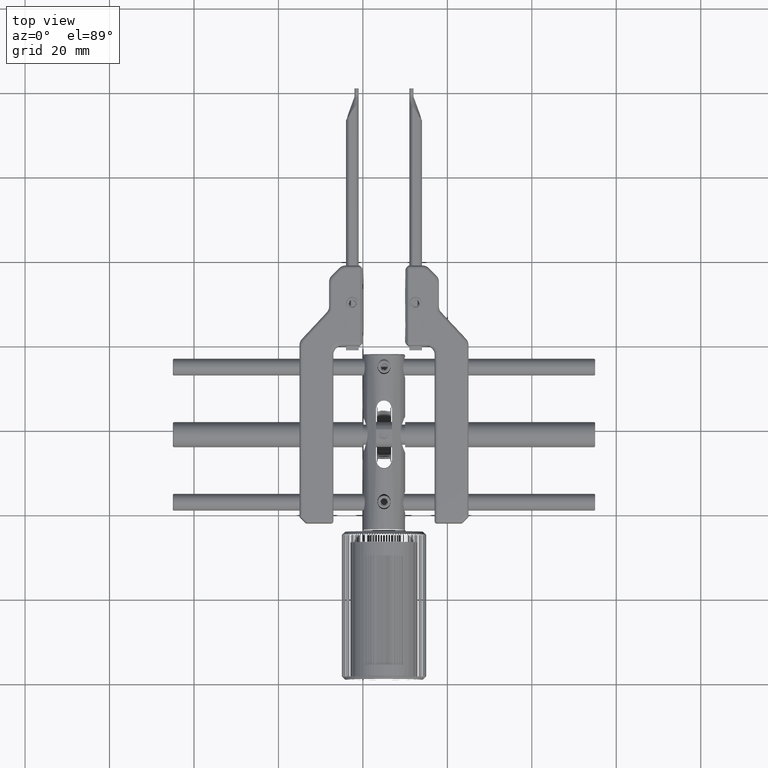
[diagram: clean part render]
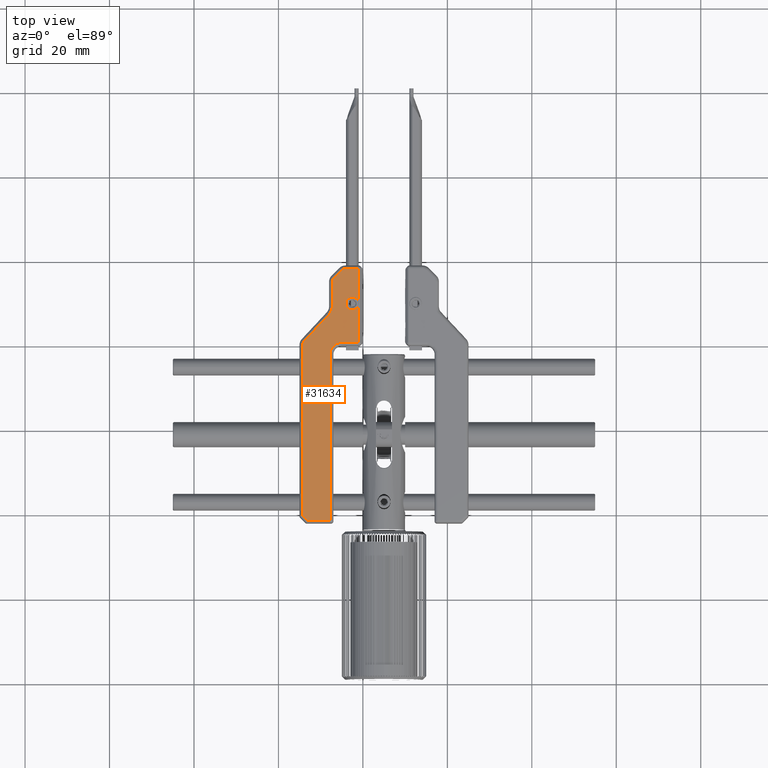
[diagram: same view with one face highlighted and labeled with its STEP entity id]
A machine part, top view. The second image highlights one B-rep face of the part: STEP entity #31634.
In plain terms, the highlighted planar face has unit normal (0, 0, -1).
Its self-contained STEP definition (entity closure, byte-faithful):
#21 = DIRECTION ( 'NONE',  ( -1.000000000000000000, 0.000000000000000000, -0.000000000000000000 ) ) ;
#111 = CARTESIAN_POINT ( 'NONE',  ( 15.82842712474619873, 18.25000000000000000, 4.000000000000000000 ) ) ;
#453 = CARTESIAN_POINT ( 'NONE',  ( 18.74999999999998579, 10.07938721587746222, 4.000000000000000888 ) ) ;
#898 = CARTESIAN_POINT ( 'NONE',  ( 18.00000645838711932, 11.14585006917659271, 4.000000000000000000 ) ) ;
#1117 = CARTESIAN_POINT ( 'NONE',  ( 18.70703190299392560, 10.32946201445125212, 3.999999999999999112 ) ) ;
#1262 = CARTESIAN_POINT ( 'NONE',  ( 18.74999999999998224, 10.00000000000000000, 3.999999999999999112 ) ) ;
#1343 = CARTESIAN_POINT ( 'NONE',  ( 16.35414993082303425, 10.50000645838649760, 4.000000000000000888 ) ) ;
#1469 = CARTESIAN_POINT ( 'NONE',  ( 16.49437856662600055, 9.237959410675410155, 3.999999999999999112 ) ) ;
#2093 = ORIENTED_EDGE ( 'NONE', *, *, #34630, .F. ) ;
#2126 = CARTESIAN_POINT ( 'NONE',  ( 16.99999354161343490, 8.854149930823293602, 3.999999999999999112 ) ) ;
#2713 = ORIENTED_EDGE ( 'NONE', *, *, #41705, .F. ) ;
#2907 = B_SPLINE_CURVE_WITH_KNOTS ( 'NONE', 3,
 ( #15134, #22293, #11580, #22514, #36137, #8867, #32121, #28993, #1469, #35919, #8428, #5509, #19165, #2126, #12226, #14910, #21846, #38831, #42435, #11797, #32776, #25407, #18721, #39050, #28771, #15791, #22071, #5056, #35689, #42653, #25194, #32343, #4839, #28543 ),
 .UNSPECIFIED., .F., .F.,
 ( 4, 1, 1, 2, 2, 2, 1, 1, 2, 2, 2, 1, 1, 2, 2, 2, 1, 1, 2, 2, 4 ),
 ( 0.000000000000000000, 0.06250000000000582867, 0.09375000000000943690, 0.1093750000000101863, 0.1250000000000109357, 0.2500000000000201505, 0.3125000000000247580, 0.3437500000000284772, 0.3593750000000292544, 0.3750000000000299760, 0.5000000000000236478, 0.5625000000000190958, 0.5937500000000168754, 0.6093750000000157652, 0.6250000000000146549, 0.7500000000000106581, 0.8125000000000077716, 0.8437500000000057732, 0.8593750000000052180, 0.8750000000000046629, 1.000000000000000000 ),
 .UNSPECIFIED. ) ;
#3220 = CARTESIAN_POINT ( 'NONE',  ( 5.749999999999987566, 0.5321441317675152938, 3.999999999999999112 ) ) ;
#3282 = CARTESIAN_POINT ( 'NONE',  ( 12.24999999999999467, -41.25000000000000000, 3.999999999999999112 ) ) ;
#3350 = ORIENTED_EDGE ( 'NONE', *, *, #16037, .F. ) ;
#3479 = LINE ( 'NONE', #21378, #19371 ) ;
#4036 = LINE ( 'NONE', #38686, #7185 ) ;
#4044 = CARTESIAN_POINT ( 'NONE',  ( 18.50562143337153387, 10.76204058932510499, 4.000000000000000000 ) ) ;
#4257 = CARTESIAN_POINT ( 'NONE',  ( 17.81267451478433728, 11.22067752756784742, 3.999999999999999112 ) ) ;
#4470 = CARTESIAN_POINT ( 'NONE',  ( 12.49146029304654881, 7.927370785656137286, 3.999999999999999112 ) ) ;
#4481 = CARTESIAN_POINT ( 'NONE',  ( 16.73795941067647775, 11.00562143337423038, 3.999999999999998224 ) ) ;
#4688 = ORIENTED_EDGE ( 'NONE', *, *, #9882, .F. ) ;
#4719 = CARTESIAN_POINT ( 'NONE',  ( 6.086180914696400102, 1.064571451709554584, 4.000000000000000000 ) ) ;
#4839 = CARTESIAN_POINT ( 'NONE',  ( 18.74999999999998224, 9.840868823742939142, 4.000000000000000000 ) ) ;
#5056 = CARTESIAN_POINT ( 'NONE',  ( 18.60011932214804276, 9.403475382809837413, 3.999999999999998224 ) ) ;
#5119 =( BOUNDED_CURVE ( )  B_SPLINE_CURVE ( 3, ( #24132, #23908, #21446, #35068 ),
 .UNSPECIFIED., .F., .F. ) 
 B_SPLINE_CURVE_WITH_KNOTS ( ( 4, 4 ),
 ( 0.000000000000000000, 1.000000000000000000 ),
 .UNSPECIFIED. ) 
 CURVE ( )  GEOMETRIC_REPRESENTATION_ITEM ( )  RATIONAL_B_SPLINE_CURVE ( ( 1.000000000000000000, 0.8047378541243649375, 0.8047378541243649375, 1.000000000000000000 ) ) 
 REPRESENTATION_ITEM ( '' )  );
#5189 = LINE ( 'NONE', #25756, #8570 ) ;
#5333 = CARTESIAN_POINT ( 'NONE',  ( 5.749999999999995559, -40.18933982822017725, 4.000000000000000000 ) ) ;
#5509 = CARTESIAN_POINT ( 'NONE',  ( 16.90347538280921214, 8.899880677853285960, 3.999999999999998224 ) ) ;
#5686 = LINE ( 'NONE', #32740, #39974 ) ;
#5730 = CARTESIAN_POINT ( 'NONE',  ( 12.74999999999999467, 9.288326361240454077, 3.999999999999999112 ) ) ;
#6816 = VECTOR ( 'NONE', #43026, 1000.000000000000000 ) ;
#7026 = LINE ( 'NONE', #30956, #40714 ) ;
#7185 = VECTOR ( 'NONE', #17687, 1000.000000000000000 ) ;
#7349 = ORIENTED_EDGE ( 'NONE', *, *, #13782, .F. ) ;
#7413 = ORIENTED_EDGE ( 'NONE', *, *, #38600, .F. ) ;
#7628 = CARTESIAN_POINT ( 'NONE',  ( 18.68920471381055393, 10.38571080435838212, 3.999999999999999112 ) ) ;
#7845 = CARTESIAN_POINT ( 'NONE',  ( 16.87971144801663925, 11.09890197946623580, 3.999999999999998224 ) ) ;
#7945 = VECTOR ( 'NONE', #10631, 999.9999999999998863 ) ;
#8142 = CARTESIAN_POINT ( 'NONE',  ( 5.749999999999987566, 0.2116736387595408997, 3.999999999999999112 ) ) ;
#8170 = EDGE_CURVE ( 'NONE', #12829, #16534, #40781, .T. ) ;
#8322 = ORIENTED_EDGE ( 'NONE', *, *, #39718, .F. ) ;
#8325 = EDGE_CURVE ( 'NONE', #22988, #11175, #5686, .T. ) ;
#8428 = CARTESIAN_POINT ( 'NONE',  ( 16.77560787198763492, 8.974710009772451258, 3.999999999999999112 ) ) ;
#8570 = VECTOR ( 'NONE', #22648, 1000.000000000000000 ) ;
#8782 = EDGE_CURVE ( 'NONE', #43527, #12562, #5189, .T. ) ;
#8867 = CARTESIAN_POINT ( 'NONE',  ( 16.32359429380825944, 9.576958803498195394, 3.999999999999998224 ) ) ;
#9014 = CARTESIAN_POINT ( 'NONE',  ( 12.74999999999999645, 15.50752425283466707, 3.999999999999999112 ) ) ;
#9119 = VERTEX_POINT ( 'NONE', #22591 ) ;
#9882 = EDGE_CURVE ( 'NONE', #12562, #41569, #3479, .T. ) ;
#9902 = CARTESIAN_POINT ( 'NONE',  ( 19.04289321881344321, 18.25000000000000355, 4.000000000000000000 ) ) ;
#9959 =( BOUNDED_CURVE ( )  B_SPLINE_CURVE ( 3, ( #39637, #9014, #42358, #43237 ),
 .UNSPECIFIED., .F., .F. ) 
 B_SPLINE_CURVE_WITH_KNOTS ( ( 4, 4 ),
 ( 0.000000000000000000, 1.000000000000000000 ),
 .UNSPECIFIED. ) 
 CURVE ( )  GEOMETRIC_REPRESENTATION_ITEM ( )  RATIONAL_B_SPLINE_CURVE ( ( 1.000000000000000000, 0.9492530216741911220, 0.9492530216741911220, 1.000000000000000000 ) ) 
 REPRESENTATION_ITEM ( '' )  );
#10055 = VECTOR ( 'NONE', #17032, 1000.000000000000000 ) ;
#10235 =( BOUNDED_CURVE ( )  B_SPLINE_CURVE ( 3, ( #23947, #4470, #35110, #41624 ),
 .UNSPECIFIED., .F., .F. ) 
 B_SPLINE_CURVE_WITH_KNOTS ( ( 4, 4 ),
 ( 0.000000000000000000, 1.000000000000000000 ),
 .UNSPECIFIED. ) 
 CURVE ( )  GEOMETRIC_REPRESENTATION_ITEM ( )  RATIONAL_B_SPLINE_CURVE ( ( 1.000000000000000000, 0.9535582510030568004, 0.9535582510030568004, 1.000000000000000000 ) ) 
 REPRESENTATION_ITEM ( '' )  );
#10241 = EDGE_CURVE ( 'NONE', #16534, #43527, #4036, .T. ) ;
#10631 = DIRECTION ( 'NONE',  ( -0.7071067811865463515, 0.7071067811865487940, 0.000000000000000000 ) ) ;
#10993 = ORIENTED_EDGE ( 'NONE', *, *, #8782, .F. ) ;
#11175 = VERTEX_POINT ( 'NONE', #40653 ) ;
#11448 = CARTESIAN_POINT ( 'NONE',  ( 16.55519507993698625, 10.82301449803765436, 4.000000000000000000 ) ) ;
#11580 = CARTESIAN_POINT ( 'NONE',  ( 16.26097057795899659, 9.803557573844457806, 3.999999999999999112 ) ) ;
#11797 = CARTESIAN_POINT ( 'NONE',  ( 17.82935031642878698, 8.792923930133392574, 4.000000000000000000 ) ) ;
#12226 = CARTESIAN_POINT ( 'NONE',  ( 17.02145112902678292, 8.845069892576944426, 3.999999999999998224 ) ) ;
#12562 = VERTEX_POINT ( 'NONE', #42068 ) ;
#12829 = VERTEX_POINT ( 'NONE', #25992 ) ;
#12904 = EDGE_CURVE ( 'NONE', #11175, #42726, #9959, .T. ) ;
#12927 = CARTESIAN_POINT ( 'NONE',  ( 13.11611652351681023, 16.05545635173698926, 4.000000000000000000 ) ) ;
#13782 = EDGE_CURVE ( 'NONE', #43770, #15857, #7026, .T. ) ;
#14120 = CARTESIAN_POINT ( 'NONE',  ( 18.67640570619172635, 10.42304119650155236, 4.000000000000000888 ) ) ;
#14133 = PLANE ( 'NONE',  #25804 ) ;
#14785 = CARTESIAN_POINT ( 'NONE',  ( 18.09652461719238303, 11.10011932214636943, 3.999999999999998224 ) ) ;
#14910 = CARTESIAN_POINT ( 'NONE',  ( 17.18732548521458270, 8.779322472432157909, 3.999999999999999112 ) ) ;
#15057 = ORIENTED_EDGE ( 'NONE', *, *, #27066, .F. ) ;
#15134 = CARTESIAN_POINT ( 'NONE',  ( 16.25000000000000000, 10.00000000000000000, 3.999999999999999112 ) ) ;
#15656 = CARTESIAN_POINT ( 'NONE',  ( 16.34507834231129664, 10.47857018883269475, 3.999999999999999112 ) ) ;
#15791 = CARTESIAN_POINT ( 'NONE',  ( 18.44480492006348982, 9.176985501962695579, 3.999999999999999112 ) ) ;
#15857 = VERTEX_POINT ( 'NONE', #3282 ) ;
#15875 = CARTESIAN_POINT ( 'NONE',  ( 16.39988067785258252, 10.59652461719061556, 3.999999999999999112 ) ) ;
#15973 = DIRECTION ( 'NONE',  ( -1.652117596168388249E-16, 1.000000000000000000, -0.000000000000000000 ) ) ;
#16037 = EDGE_CURVE ( 'NONE', #9119, #23993, #2907, .T. ) ;
#16534 = VERTEX_POINT ( 'NONE', #111 ) ;
#17032 = DIRECTION ( 'NONE',  ( 0.7071067811865492381, 0.7071067811865457964, -0.000000000000000000 ) ) ;
#17544 = LINE ( 'NONE', #25563, #36777 ) ;
#17687 = DIRECTION ( 'NONE',  ( 1.000000000000000000, 4.336808689942017736E-16, -0.000000000000000000 ) ) ;
#17793 = VERTEX_POINT ( 'NONE', #32927 ) ;
#17921 = CARTESIAN_POINT ( 'NONE',  ( 17.65860422524290385, 11.24993269809876928, 3.999999999999998224 ) ) ;
#18600 = CARTESIAN_POINT ( 'NONE',  ( 16.25000000000000355, 10.15913117625869333, 4.000000000000000000 ) ) ;
#18721 = CARTESIAN_POINT ( 'NONE',  ( 17.94009711632336490, 8.829847949064125956, 3.999999999999998224 ) ) ;
#18816 = CARTESIAN_POINT ( 'NONE',  ( 16.25000000000000000, 10.00000000000000000, 3.999999999999999112 ) ) ;
#19165 = CARTESIAN_POINT ( 'NONE',  ( 16.96102033297388445, 8.871897374875100439, 4.000000000000000000 ) ) ;
#19371 = VECTOR ( 'NONE', #27405, 1000.000000000000000 ) ;
#20514 = DIRECTION ( 'NONE',  ( 0.6823182503600114801, 0.7310552682428687055, -0.000000000000000000 ) ) ;
#21277 = CARTESIAN_POINT ( 'NONE',  ( 18.03897966702713518, 11.12810262512468640, 3.999999999999999112 ) ) ;
#21378 = CARTESIAN_POINT ( 'NONE',  ( 14.99999999999999289, 0.7499999999999998890, 3.999999999999999112 ) ) ;
#21446 = CARTESIAN_POINT ( 'NONE',  ( 12.24999999999999112, -0.3890872965260126493, 3.999999999999999112 ) ) ;
#21499 = CARTESIAN_POINT ( 'NONE',  ( 17.30370650454341330, 11.23908831120456497, 4.000000000000000000 ) ) ;
#21513 = DIRECTION ( 'NONE',  ( 0.000000000000000000, 0.000000000000000000, -1.000000000000000000 ) ) ;
#21589 = CARTESIAN_POINT ( 'NONE',  ( 15.18209714549941225, 18.12143697371957529, 3.999999999999998224 ) ) ;
#21809 = B_SPLINE_CURVE_WITH_KNOTS ( 'NONE', 3,
 ( #28414, #453, #38254, #1117, #7628, #14120, #27737, #41412, #4044, #27962, #24618, #14785, #21277, #898, #34893, #4257, #17921, #31547, #21499, #28183, #42078, #24844, #38473, #7845, #4481, #11448, #25503, #15875, #35792, #1343, #15656, #25944, #18600, #18816 ),
 .UNSPECIFIED., .F., .F.,
 ( 4, 1, 1, 2, 2, 2, 1, 1, 2, 2, 2, 1, 1, 2, 2, 2, 1, 1, 2, 2, 4 ),
 ( 0.000000000000000000, 0.06249999999999819589, 0.09374999999999729383, 0.1093749999999978906, 0.1249999999999985012, 0.2500000000000021094, 0.3125000000000043299, 0.3437500000000047184, 0.3593750000000052180, 0.3750000000000057176, 0.5000000000000055511, 0.5625000000000055511, 0.5937500000000056621, 0.6093750000000057732, 0.6250000000000056621, 0.7500000000000027756, 0.8125000000000017764, 0.8437500000000013323, 0.8593750000000011102, 0.8750000000000007772, 1.000000000000000000 ),
 .UNSPECIFIED. ) ;
#21846 = CARTESIAN_POINT ( 'NONE',  ( 17.34139577475548322, 8.750067301901232497, 3.999999999999999112 ) ) ;
#21871 = VERTEX_POINT ( 'NONE', #31128 ) ;
#22071 = CARTESIAN_POINT ( 'NONE',  ( 18.52528999022932865, 9.275607871988453823, 3.999999999999999112 ) ) ;
#22249 =( BOUNDED_CURVE ( )  B_SPLINE_CURVE ( 3, ( #44180, #3220, #41031, #33637 ),
 .UNSPECIFIED., .F., .F. ) 
 B_SPLINE_CURVE_WITH_KNOTS ( ( 4, 4 ),
 ( 0.000000000000000000, 1.000000000000000000 ),
 .UNSPECIFIED. ) 
 CURVE ( )  GEOMETRIC_REPRESENTATION_ITEM ( )  RATIONAL_B_SPLINE_CURVE ( ( 1.000000000000000000, 0.9535582510030569114, 0.9535582510030569114, 1.000000000000000000 ) ) 
 REPRESENTATION_ITEM ( '' )  );
#22293 = CARTESIAN_POINT ( 'NONE',  ( 16.25000000000000000, 9.920612784121997763, 3.999999999999999112 ) ) ;
#22514 = CARTESIAN_POINT ( 'NONE',  ( 16.29296809700606374, 9.670537985548042670, 4.000000000000000000 ) ) ;
#22591 = CARTESIAN_POINT ( 'NONE',  ( 16.25000000000000000, 10.00000000000000000, 3.999999999999999112 ) ) ;
#22648 = DIRECTION ( 'NONE',  ( -0.000000000000000000, -1.000000000000000000, -0.000000000000000000 ) ) ;
#22988 = VERTEX_POINT ( 'NONE', #5730 ) ;
#23908 = CARTESIAN_POINT ( 'NONE',  ( 13.38908729652600371, 0.7499999999999985567, 3.999999999999999112 ) ) ;
#23947 = CARTESIAN_POINT ( 'NONE',  ( 12.01040198766788158, 7.411951172750423922, 3.999999999999999112 ) ) ;
#23993 = VERTEX_POINT ( 'NONE', #1262 ) ;
#24132 = CARTESIAN_POINT ( 'NONE',  ( 14.99999999999999289, 0.7499999999999991118, 3.999999999999999112 ) ) ;
#24186 = VECTOR ( 'NONE', #20514, 1000.000000000000000 ) ;
#24410 = CARTESIAN_POINT ( 'NONE',  ( 14.99999999999999289, -2.000000000000001776, 3.999999999999999112 ) ) ;
#24618 = CARTESIAN_POINT ( 'NONE',  ( 18.22439212801451092, 11.02528999022710465, 3.999999999999999112 ) ) ;
#24844 = CARTESIAN_POINT ( 'NONE',  ( 17.07699869564969575, 11.17642148007483271, 4.000000000000000000 ) ) ;
#24854 = FACE_OUTER_BOUND ( 'NONE', #31915, .T. ) ;
#25194 = CARTESIAN_POINT ( 'NONE',  ( 18.65492165768868205, 9.521429811167102741, 4.000000000000000888 ) ) ;
#25407 = CARTESIAN_POINT ( 'NONE',  ( 17.92300130435067018, 8.823578519925172614, 4.000000000000000888 ) ) ;
#25503 = CARTESIAN_POINT ( 'NONE',  ( 16.47471000977150979, 10.72439212801215014, 3.999999999999999112 ) ) ;
#25563 = CARTESIAN_POINT ( 'NONE',  ( 14.99999999999999289, -41.25000000000000000, 3.999999999999999112 ) ) ;
#25756 = CARTESIAN_POINT ( 'NONE',  ( 19.04289321881344321, -2.000000000000001776, 3.999999999999999112 ) ) ;
#25783 = LINE ( 'NONE', #29368, #6816 ) ;
#25804 = AXIS2_PLACEMENT_3D ( 'NONE', #24410, #21513, #21 ) ;
#25944 = CARTESIAN_POINT ( 'NONE',  ( 16.27925487455732423, 10.31250397190947332, 4.000000000000000888 ) ) ;
#25992 = CARTESIAN_POINT ( 'NONE',  ( 14.94454364826302140, 17.88388347648318799, 4.000000000000000000 ) ) ;
#26898 = ORIENTED_EDGE ( 'NONE', *, *, #27215, .F. ) ;
#27066 = EDGE_CURVE ( 'NONE', #15857, #17793, #17544, .T. ) ;
#27215 = EDGE_CURVE ( 'NONE', #27459, #42327, #25783, .T. ) ;
#27405 = DIRECTION ( 'NONE',  ( -1.000000000000000000, -0.000000000000000000, -0.000000000000000000 ) ) ;
#27459 = VERTEX_POINT ( 'NONE', #5333 ) ;
#27571 = EDGE_LOOP ( 'NONE', ( #3350, #8322 ) ) ;
#27594 = CARTESIAN_POINT ( 'NONE',  ( 6.810660171779815641, -41.25000000000000000, 3.999999999999999112 ) ) ;
#27737 = CARTESIAN_POINT ( 'NONE',  ( 18.67015205093558450, 10.44009711632376280, 4.000000000000000888 ) ) ;
#27962 = CARTESIAN_POINT ( 'NONE',  ( 18.32301449803899374, 10.94480492006221795, 3.999999999999998224 ) ) ;
#28183 = CARTESIAN_POINT ( 'NONE',  ( 17.17064968357225396, 11.20707606986659854, 3.999999999999999112 ) ) ;
#28414 = CARTESIAN_POINT ( 'NONE',  ( 18.74999999999998224, 10.00000000000000000, 3.999999999999999112 ) ) ;
#28504 = CARTESIAN_POINT ( 'NONE',  ( 15.82842712474619873, 18.25000000000000000, 4.000000000000000000 ) ) ;
#28543 = CARTESIAN_POINT ( 'NONE',  ( 18.74999999999998224, 10.00000000000000000, 3.999999999999999112 ) ) ;
#28596 = CARTESIAN_POINT ( 'NONE',  ( 5.030330085889914038, 7.969669914110128595, 4.000000000000000000 ) ) ;
#28771 = CARTESIAN_POINT ( 'NONE',  ( 18.26204058932254881, 8.994378566625080396, 3.999999999999999112 ) ) ;
#28878 = CARTESIAN_POINT ( 'NONE',  ( 12.24999999999999289, -2.000000000000001776, 3.999999999999999112 ) ) ;
#28993 = CARTESIAN_POINT ( 'NONE',  ( 16.40109802053449783, 9.379711448015070729, 4.000000000000000000 ) ) ;
#29368 = CARTESIAN_POINT ( 'NONE',  ( 5.749999999999988454, -2.000000000000003109, 3.999999999999999112 ) ) ;
#30521 = EDGE_CURVE ( 'NONE', #42726, #12829, #41195, .T. ) ;
#30956 = CARTESIAN_POINT ( 'NONE',  ( 12.24999999999999289, -2.000000000000001776, 3.999999999999999112 ) ) ;
#30964 = LINE ( 'NONE', #27594, #7945 ) ;
#31128 = CARTESIAN_POINT ( 'NONE',  ( 12.01040198766788158, 7.411951172750423922, 3.999999999999999112 ) ) ;
#31418 = CARTESIAN_POINT ( 'NONE',  ( 15.49247574716533826, 18.24999999999999289, 3.999999999999998224 ) ) ;
#31547 = CARTESIAN_POINT ( 'NONE',  ( 17.42069788737853742, 11.25003365095060204, 3.999999999999999112 ) ) ;
#31634 = ADVANCED_FACE ( 'NONE', ( #41869, #24854 ), #14133, .F. ) ;
#31915 = EDGE_LOOP ( 'NONE', ( #10993, #40173, #37158, #36927, #32377, #36686, #7413, #2713, #38751, #26898, #2093, #15057, #7349, #37998, #4688 ) ) ;
#32121 = CARTESIAN_POINT ( 'NONE',  ( 16.32984794906414550, 9.559902883676736352, 4.000000000000000000 ) ) ;
#32343 = CARTESIAN_POINT ( 'NONE',  ( 18.72074512544265801, 9.687496028092160927, 3.999999999999999112 ) ) ;
#32377 = ORIENTED_EDGE ( 'NONE', *, *, #12904, .F. ) ;
#32740 = CARTESIAN_POINT ( 'NONE',  ( 12.74999999999999822, -2.000000000000002220, 4.000000000000000000 ) ) ;
#32776 = CARTESIAN_POINT ( 'NONE',  ( 17.88563899848680094, 8.810766893199865279, 3.999999999999999112 ) ) ;
#32927 = CARTESIAN_POINT ( 'NONE',  ( 6.810660171779816530, -41.25000000000000000, 4.000000000000000000 ) ) ;
#33637 = CARTESIAN_POINT ( 'NONE',  ( 6.086180914696400102, 1.064571451709554584, 4.000000000000000000 ) ) ;
#34578 = EDGE_CURVE ( 'NONE', #42327, #43719, #22249, .T. ) ;
#34630 = EDGE_CURVE ( 'NONE', #17793, #27459, #30964, .T. ) ;
#34893 = CARTESIAN_POINT ( 'NONE',  ( 17.97854887097333076, 11.15493010742305380, 3.999999999999999112 ) ) ;
#35068 = CARTESIAN_POINT ( 'NONE',  ( 12.24999999999999289, -2.000000000000001776, 3.999999999999999112 ) ) ;
#35110 = CARTESIAN_POINT ( 'NONE',  ( 12.74999999999999467, 8.583291276622910360, 3.999999999999999112 ) ) ;
#35689 = CARTESIAN_POINT ( 'NONE',  ( 18.62810262512574866, 9.461020332974285907, 4.000000000000000888 ) ) ;
#35792 = CARTESIAN_POINT ( 'NONE',  ( 16.37189737487463859, 10.53897966702600542, 3.999999999999999112 ) ) ;
#35919 = CARTESIAN_POINT ( 'NONE',  ( 16.67698550196222484, 9.055195079937528035, 3.999999999999998224 ) ) ;
#36137 = CARTESIAN_POINT ( 'NONE',  ( 16.31079528618943542, 9.614289195641164909, 4.000000000000000888 ) ) ;
#36686 = ORIENTED_EDGE ( 'NONE', *, *, #8325, .F. ) ;
#36777 = VECTOR ( 'NONE', #42586, 1000.000000000000000 ) ;
#36827 = CARTESIAN_POINT ( 'NONE',  ( 8.707436344293787656, 3.873059411992465506, 4.000000000000000000 ) ) ;
#36927 = ORIENTED_EDGE ( 'NONE', *, *, #30521, .F. ) ;
#37158 = ORIENTED_EDGE ( 'NONE', *, *, #8170, .F. ) ;
#37998 = ORIENTED_EDGE ( 'NONE', *, *, #39973, .F. ) ;
#38254 = CARTESIAN_POINT ( 'NONE',  ( 18.73902942204099631, 10.19644242615460250, 3.999999999999999112 ) ) ;
#38473 = CARTESIAN_POINT ( 'NONE',  ( 17.05990288367653562, 11.17015205093575503, 3.999999999999999112 ) ) ;
#38600 = EDGE_CURVE ( 'NONE', #21871, #22988, #10235, .T. ) ;
#38686 = CARTESIAN_POINT ( 'NONE',  ( 14.99999999999998579, 18.25000000000000000, 4.000000000000000000 ) ) ;
#38751 = ORIENTED_EDGE ( 'NONE', *, *, #34578, .F. ) ;
#38791 = CARTESIAN_POINT ( 'NONE',  ( 14.94454364826302140, 17.88388347648318799, 4.000000000000000000 ) ) ;
#38831 = CARTESIAN_POINT ( 'NONE',  ( 17.57930211262224773, 8.749966349049397962, 3.999999999999998224 ) ) ;
#39050 = CARTESIAN_POINT ( 'NONE',  ( 18.12028855198403221, 8.901098020534721655, 4.000000000000000000 ) ) ;
#39534 = CARTESIAN_POINT ( 'NONE',  ( 14.99999999999999289, 0.7499999999999991118, 3.999999999999999112 ) ) ;
#39637 = CARTESIAN_POINT ( 'NONE',  ( 12.74999999999999467, 15.17157287525380127, 4.000000000000000000 ) ) ;
#39718 = EDGE_CURVE ( 'NONE', #23993, #9119, #21809, .T. ) ;
#39973 = EDGE_CURVE ( 'NONE', #41569, #43770, #5119, .T. ) ;
#39974 = VECTOR ( 'NONE', #15973, 1000.000000000000000 ) ;
#40173 = ORIENTED_EDGE ( 'NONE', *, *, #10241, .F. ) ;
#40653 = CARTESIAN_POINT ( 'NONE',  ( 12.74999999999999467, 15.17157287525380127, 4.000000000000000000 ) ) ;
#40714 = VECTOR ( 'NONE', #41254, 1000.000000000000000 ) ;
#40781 =( BOUNDED_CURVE ( )  B_SPLINE_CURVE ( 3, ( #38791, #21589, #31418, #28504 ),
 .UNSPECIFIED., .F., .F. ) 
 B_SPLINE_CURVE_WITH_KNOTS ( ( 4, 4 ),
 ( 0.000000000000000000, 1.000000000000000000 ),
 .UNSPECIFIED. ) 
 CURVE ( )  GEOMETRIC_REPRESENTATION_ITEM ( )  RATIONAL_B_SPLINE_CURVE ( ( 1.000000000000000000, 0.9492530216741927873, 0.9492530216741927873, 1.000000000000000000 ) ) 
 REPRESENTATION_ITEM ( '' )  );
#41031 = CARTESIAN_POINT ( 'NONE',  ( 5.867518048615189663, 0.8302898094796853368, 3.999999999999999112 ) ) ;
#41195 = LINE ( 'NONE', #28596, #10055 ) ;
#41254 = DIRECTION ( 'NONE',  ( -0.000000000000000000, -1.000000000000000000, -0.000000000000000000 ) ) ;
#41412 = CARTESIAN_POINT ( 'NONE',  ( 18.59890197946753787, 10.62028855198093780, 3.999999999999999112 ) ) ;
#41569 = VERTEX_POINT ( 'NONE', #39534 ) ;
#41624 = CARTESIAN_POINT ( 'NONE',  ( 12.74999999999999467, 9.288326361240454077, 3.999999999999999112 ) ) ;
#41705 = EDGE_CURVE ( 'NONE', #43719, #21871, #43354, .T. ) ;
#41869 = FACE_BOUND ( 'NONE', #27571, .T. ) ;
#42068 = CARTESIAN_POINT ( 'NONE',  ( 19.04289321881344321, 0.7499999999999998890, 3.999999999999999112 ) ) ;
#42078 = CARTESIAN_POINT ( 'NONE',  ( 17.11436100151386341, 11.18923310680013650, 4.000000000000000000 ) ) ;
#42327 = VERTEX_POINT ( 'NONE', #8142 ) ;
#42358 = CARTESIAN_POINT ( 'NONE',  ( 12.87856302628042116, 15.81790285450059663, 3.999999999999999112 ) ) ;
#42435 = CARTESIAN_POINT ( 'NONE',  ( 17.69629349545799357, 8.760911688795440355, 4.000000000000000000 ) ) ;
#42586 = DIRECTION ( 'NONE',  ( -1.000000000000000000, -0.000000000000000000, -0.000000000000000000 ) ) ;
#42653 = CARTESIAN_POINT ( 'NONE',  ( 18.64585006917717180, 9.499993541613664050, 4.000000000000001776 ) ) ;
#42726 = VERTEX_POINT ( 'NONE', #12927 ) ;
#43026 = DIRECTION ( 'NONE',  ( -1.613696256722611159E-16, 1.000000000000000000, -0.000000000000000000 ) ) ;
#43237 = CARTESIAN_POINT ( 'NONE',  ( 13.11611652351681023, 16.05545635173698926, 4.000000000000000000 ) ) ;
#43354 = LINE ( 'NONE', #36827, #24186 ) ;
#43527 = VERTEX_POINT ( 'NONE', #9902 ) ;
#43719 = VERTEX_POINT ( 'NONE', #4719 ) ;
#43770 = VERTEX_POINT ( 'NONE', #28878 ) ;
#44180 = CARTESIAN_POINT ( 'NONE',  ( 5.749999999999987566, 0.2116736387595408997, 3.999999999999999112 ) ) ;